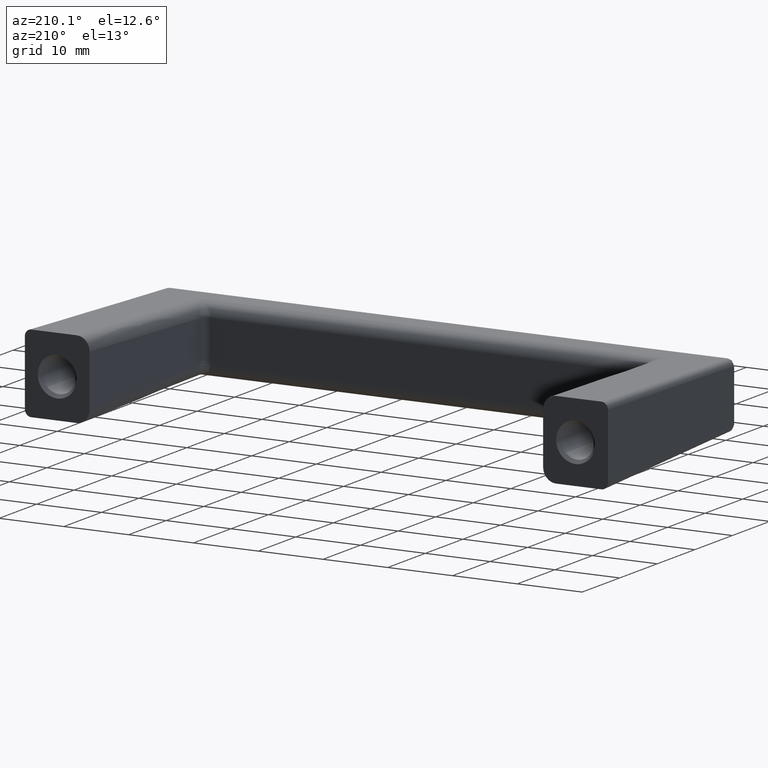
[diagram: clean part render]
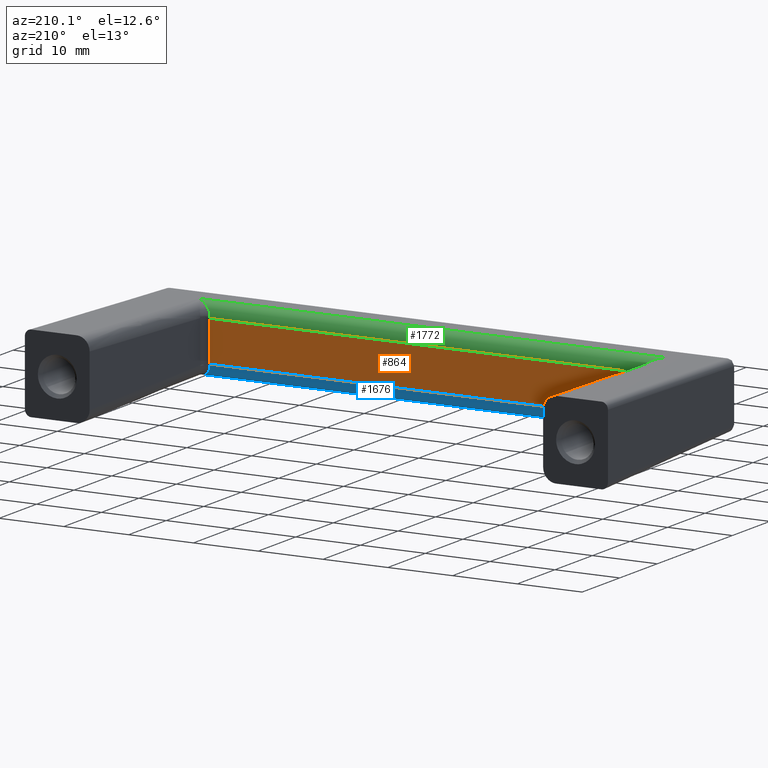
[diagram: same view with three faces highlighted in distinct colors, each labeled with its STEP entity id]
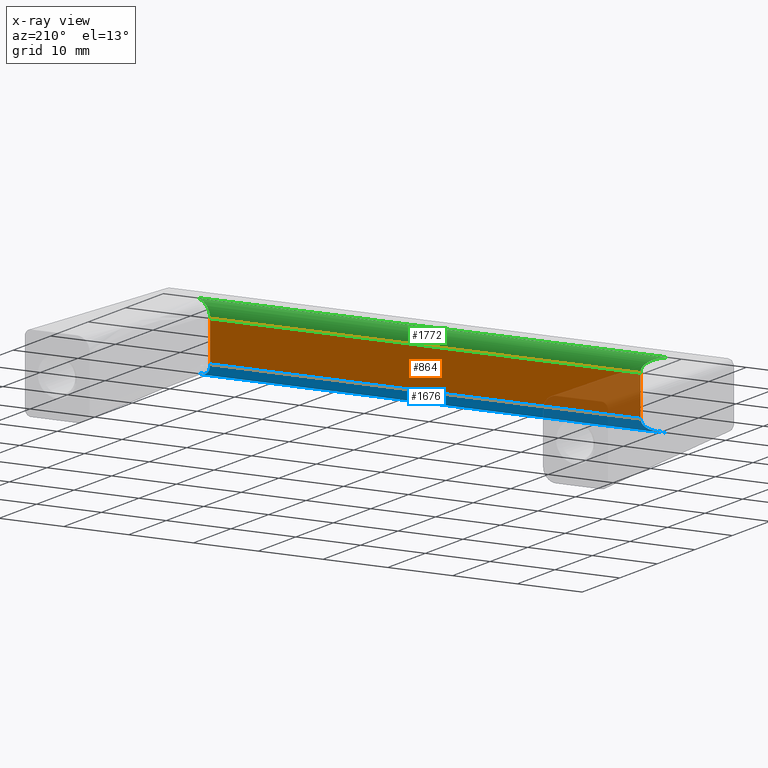
[diagram: x-ray of the same camera — body ghosted, the three highlighted faces saturated]
A machine part, auxiliary view with three faces highlighted in distinct colors.
The next image is the same camera in x-ray (body ghosted, the three faces saturated) — at least one of them is partly hidden behind the body in this view.
Their STEP definitions:

[orange] entity #864 — the highlighted face is a freeform B-spline surface patch.
#829=CARTESIAN_POINT('',(-36.540736908104293,-29.0,-3.451615352102601));
#830=CARTESIAN_POINT('',(36.540338690254693,-29.0,-3.451615352102601));
#831=CARTESIAN_POINT('',(-36.540736908104293,-29.0,3.451615520444308));
#832=CARTESIAN_POINT('',(36.540338690254693,-29.0,3.451615520444308));
#833=B_SPLINE_SURFACE_WITH_KNOTS('',1,1,((#829,#831),(#830,#832)),.UNSPECIFIED.,.F.,.F.,.U.,(2,2),(2,2),(0.0,73.081075598358979),(0.0,6.903230872546909),.UNSPECIFIED.);
#834=CARTESIAN_POINT('',(33.221490187184763,-29.0,-3.138117432736760));
#835=VERTEX_POINT('',#834);
#836=CARTESIAN_POINT('',(-33.221890187184698,-29.0,-3.138117432736760));
#837=VERTEX_POINT('',#836);
#838=CARTESIAN_POINT('',(33.221490187184763,-29.0,-3.138117432736760));
#839=CARTESIAN_POINT('',(-33.221890187184698,-29.0,-3.138117432736760));
#840=QUASI_UNIFORM_CURVE('',1,(#838,#839),.UNSPECIFIED.,.F.,.U.);
#841=EDGE_CURVE('',#835,#837,#840,.T.);
#842=ORIENTED_EDGE('',*,*,#841,.T.);
#843=CARTESIAN_POINT('',(-33.221890187184698,-29.0,3.138117432736730));
#844=VERTEX_POINT('',#843);
#845=CARTESIAN_POINT('',(-33.221890187184698,-29.0,-3.138117432736760));
#846=CARTESIAN_POINT('',(-33.221890187184698,-29.0,3.138117432736730));
#847=QUASI_UNIFORM_CURVE('',1,(#845,#846),.UNSPECIFIED.,.F.,.U.);
#848=EDGE_CURVE('',#837,#844,#847,.T.);
#849=ORIENTED_EDGE('',*,*,#848,.T.);
#850=CARTESIAN_POINT('',(33.221490187184763,-29.0,3.138117432736730));
#851=VERTEX_POINT('',#850);
#852=CARTESIAN_POINT('',(-33.221890187184698,-29.0,3.138117432736730));
#853=CARTESIAN_POINT('',(33.221490187184763,-29.0,3.138117432736730));
#854=QUASI_UNIFORM_CURVE('',1,(#852,#853),.UNSPECIFIED.,.F.,.U.);
#855=EDGE_CURVE('',#844,#851,#854,.T.);
#856=ORIENTED_EDGE('',*,*,#855,.T.);
#857=CARTESIAN_POINT('',(33.221490187184763,-29.0,3.138117432736730));
#858=CARTESIAN_POINT('',(33.221490187184763,-29.0,-3.138117432736760));
#859=QUASI_UNIFORM_CURVE('',1,(#857,#858),.UNSPECIFIED.,.F.,.U.);
#860=EDGE_CURVE('',#851,#835,#859,.T.);
#861=ORIENTED_EDGE('',*,*,#860,.T.);
#862=EDGE_LOOP('',(#842,#849,#856,#861));
#863=FACE_OUTER_BOUND('',#862,.T.);
#864=ADVANCED_FACE('',(#863),#833,.F.);

[blue] entity #1676 — the highlighted face is a freeform B-spline surface patch.
#834=CARTESIAN_POINT('',(33.221490187184763,-29.0,-3.138117432736760));
#835=VERTEX_POINT('',#834);
#836=CARTESIAN_POINT('',(-33.221890187184698,-29.0,-3.138117432736760));
#837=VERTEX_POINT('',#836);
#838=CARTESIAN_POINT('',(33.221490187184763,-29.0,-3.138117432736760));
#839=CARTESIAN_POINT('',(-33.221890187184698,-29.0,-3.138117432736760));
#840=QUASI_UNIFORM_CURVE('',1,(#838,#839),.UNSPECIFIED.,.F.,.U.);
#841=EDGE_CURVE('',#835,#837,#840,.T.);
#1204=CARTESIAN_POINT('',(-33.221859816845303,-29.000728938416351,-3.192110231461500));
#1205=VERTEX_POINT('',#1204);
#1224=CARTESIAN_POINT('',(-33.221859816845303,-29.000728938416351,-3.192110231461500));
#1225=CARTESIAN_POINT('',(-33.221890187184698,-29.0,-3.138117432736760));
#1226=QUASI_UNIFORM_CURVE('',1,(#1224,#1225),.UNSPECIFIED.,.F.,.U.);
#1227=EDGE_CURVE('',#1205,#837,#1226,.T.);
#1282=CARTESIAN_POINT('',(-36.139719625630647,-31.055534134480698,-5.137346274042200));
#1283=VERTEX_POINT('',#1282);
#1284=CARTESIAN_POINT('',(-36.139719625630647,-31.055534134480698,-5.137346274042200));
#1285=CARTESIAN_POINT('',(-35.796899628650763,-30.820634806540799,-5.143526932139266));
#1286=CARTESIAN_POINT('',(-35.300997127065827,-30.479241433997139,-5.094783632806609));
#1287=CARTESIAN_POINT('',(-34.673726006492117,-30.043878003469210,-4.905969787883692));
#1288=CARTESIAN_POINT('',(-34.371733263227817,-29.832959328262799,-4.767627846495563));
#1289=CARTESIAN_POINT('',(-34.209142729400817,-29.718875251744951,-4.674169685087718));
#1290=CARTESIAN_POINT('',(-34.175299187220944,-29.695097297267662,-4.653595589116662));
#1291=CARTESIAN_POINT('',(-34.132988707420843,-29.665373640559231,-4.627983675397957));
#1292=CARTESIAN_POINT('',(-34.091160204656788,-29.635948410463261,-4.601217453550306));
#1293=CARTESIAN_POINT('',(-34.049991479156731,-29.606936512225879,-4.573044490555891));
#1294=CARTESIAN_POINT('',(-33.943158252500673,-29.531631016811058,-4.499238828698016));
#1295=CARTESIAN_POINT('',(-33.784967229102421,-29.419639764371560,-4.372519843708425));
#1296=CARTESIAN_POINT('',(-33.591796650288217,-29.281544684631928,-4.169537976519338));
#1297=CARTESIAN_POINT('',(-33.428793831512607,-29.163554910127811,-3.945651995472452));
#1298=CARTESIAN_POINT('',(-33.301907609159301,-29.069390764710040,-3.687945755070004));
#1299=CARTESIAN_POINT('',(-33.233950699685707,-29.015427440254719,-3.422791273326871));
#1300=CARTESIAN_POINT('',(-33.221771053061097,-29.002592152374749,-3.261377079587426));
#1301=CARTESIAN_POINT('',(-33.221859816845303,-29.000728938416351,-3.192110231461500));
#1302=B_SPLINE_CURVE_WITH_KNOTS('',3,(#1284,#1285,#1286,#1287,#1288,#1289,#1290,#1291,#1292,#1293,#1294,#1295,#1296,#1297,#1298,#1299,#1300,#1301),.UNSPECIFIED.,.F.,.U.,(4,1,1,1,1,1,1,1,1,1,1,1,1,1,1,4),(-0.000236990041875,1.247160780695222,1.801643037930289,2.356068546834119,2.425373196691826,2.460025745296846,2.494678293901871,2.598509452436433,2.633156790375994,2.667804128315553,3.048983444340511,3.326224247609411,3.603384297143788,3.949925588697432,4.227074389423996,4.434970675278761),.UNSPECIFIED.);
#1303=EDGE_CURVE('',#1283,#1205,#1302,.T.);
#1508=CARTESIAN_POINT('',(33.221459816845552,-29.000728938416351,-3.192110231461500));
#1509=VERTEX_POINT('',#1508);
#1522=CARTESIAN_POINT('',(33.221490187184763,-29.0,-3.138117432736760));
#1523=CARTESIAN_POINT('',(33.221459816845552,-29.000728938416351,-3.192110231461500));
#1524=QUASI_UNIFORM_CURVE('',1,(#1522,#1523),.UNSPECIFIED.,.F.,.U.);
#1525=EDGE_CURVE('',#835,#1509,#1524,.T.);
#1582=CARTESIAN_POINT('',(36.139319625630847,-31.055534134480698,-5.137346274042200));
#1583=VERTEX_POINT('',#1582);
#1606=CARTESIAN_POINT('',(33.221459816845552,-29.000728938416351,-3.192110231461500));
#1607=CARTESIAN_POINT('',(33.221339593091258,-29.002891284495330,-3.272922429402758));
#1608=CARTESIAN_POINT('',(33.236683548801700,-29.018214797180612,-3.445801332479172));
#1609=CARTESIAN_POINT('',(33.313838260061011,-29.078717007228342,-3.719306755456955));
#1610=CARTESIAN_POINT('',(33.445513191136627,-29.176060759670051,-3.973268947586643));
#1611=CARTESIAN_POINT('',(33.656729226650633,-29.328655721483599,-4.252792110615678));
#1612=CARTESIAN_POINT('',(33.953196779946822,-29.539430548648280,-4.522345559522503));
#1613=CARTESIAN_POINT('',(34.351544950776052,-29.819341981174489,-4.765880432363559));
#1614=CARTESIAN_POINT('',(34.782844633559023,-30.120051925767971,-4.944749357216212));
#1615=CARTESIAN_POINT('',(35.376976766877803,-30.531860344413641,-5.103623009115472));
#1616=CARTESIAN_POINT('',(35.834552837537892,-30.846711036594499,-5.142922775595606));
#1617=CARTESIAN_POINT('',(36.139319625630847,-31.055534134480698,-5.137346274042200));
#1618=B_SPLINE_CURVE_WITH_KNOTS('',3,(#1606,#1607,#1608,#1609,#1610,#1611,#1612,#1613,#1614,#1615,#1616,#1617),.UNSPECIFIED.,.F.,.U.,(4,1,1,1,1,1,1,1,1,4),(0.000069967885812,0.242574359495862,0.519785263484198,0.866208259319043,1.143394102056869,1.663169510021688,2.217493289923938,2.771832146668181,3.326249866087809,4.434974145449267),.UNSPECIFIED.);
#1619=EDGE_CURVE('',#1509,#1583,#1618,.T.);
#1650=CARTESIAN_POINT('',(37.946295606912393,-31.122097079069711,-5.134387029580493));
#1651=CARTESIAN_POINT('',(-37.991870006444252,-31.122097079069711,-5.134387029580493));
#1652=CARTESIAN_POINT('',(37.946295606912386,-28.842561149536117,-5.273809419757944));
#1653=CARTESIAN_POINT('',(-37.991870006444238,-28.842561149536117,-5.273809419757944));
#1654=CARTESIAN_POINT('',(37.946295606912393,-29.005069780627839,-2.995802922458582));
#1655=CARTESIAN_POINT('',(-37.991870006444245,-29.005069780627839,-2.995802922458582));
#1663=(BOUNDED_SURFACE()B_SPLINE_SURFACE(1,2,((#1650,#1652,#1654),(#1651,#1653,#1655)),.UNSPECIFIED.,.F.,.F.,.U.)B_SPLINE_SURFACE_WITH_KNOTS((2,2),(3,3),(0.0,75.938165613356645),(0.0,3.628135486560046),.UNSPECIFIED.)GEOMETRIC_REPRESENTATION_ITEM()RATIONAL_B_SPLINE_SURFACE(((1.0,0.657724756413543,0.996684679596068),(1.0,0.657724756413543,0.996684679596068)))REPRESENTATION_ITEM('')SURFACE());
#1664=ORIENTED_EDGE('',*,*,#1303,.T.);
#1665=ORIENTED_EDGE('',*,*,#1227,.T.);
#1666=ORIENTED_EDGE('',*,*,#841,.F.);
#1667=ORIENTED_EDGE('',*,*,#1525,.T.);
#1668=ORIENTED_EDGE('',*,*,#1619,.T.);
#1669=CARTESIAN_POINT('',(-36.139719625630647,-31.055534134480698,-5.137346274042200));
#1670=CARTESIAN_POINT('',(36.139319625630847,-31.055534134480698,-5.137346274042200));
#1671=QUASI_UNIFORM_CURVE('',1,(#1669,#1670),.UNSPECIFIED.,.F.,.U.);
#1672=EDGE_CURVE('',#1283,#1583,#1671,.T.);
#1673=ORIENTED_EDGE('',*,*,#1672,.F.);
#1674=EDGE_LOOP('',(#1664,#1665,#1666,#1667,#1668,#1673));
#1675=FACE_OUTER_BOUND('',#1674,.T.);
#1676=ADVANCED_FACE('',(#1675),#1663,.T.);

[green] entity #1772 — the highlighted face is a freeform B-spline surface patch.
#843=CARTESIAN_POINT('',(-33.221890187184698,-29.0,3.138117432736730));
#844=VERTEX_POINT('',#843);
#850=CARTESIAN_POINT('',(33.221490187184763,-29.0,3.138117432736730));
#851=VERTEX_POINT('',#850);
#852=CARTESIAN_POINT('',(-33.221890187184698,-29.0,3.138117432736730));
#853=CARTESIAN_POINT('',(33.221490187184763,-29.0,3.138117432736730));
#854=QUASI_UNIFORM_CURVE('',1,(#852,#853),.UNSPECIFIED.,.F.,.U.);
#855=EDGE_CURVE('',#844,#851,#854,.T.);
#1023=CARTESIAN_POINT('',(-33.221859816845303,-29.000728938416351,3.192110231461505));
#1024=VERTEX_POINT('',#1023);
#1035=CARTESIAN_POINT('',(-33.221890187184698,-29.0,3.138117432736730));
#1036=CARTESIAN_POINT('',(-33.221859816845303,-29.000728938416351,3.192110231461505));
#1037=QUASI_UNIFORM_CURVE('',1,(#1035,#1036),.UNSPECIFIED.,.F.,.U.);
#1038=EDGE_CURVE('',#844,#1024,#1037,.T.);
#1147=CARTESIAN_POINT('',(-36.139719625630647,-31.055534134480698,5.137346274042200));
#1148=VERTEX_POINT('',#1147);
#1171=CARTESIAN_POINT('',(-33.221859816845303,-29.000728938416351,3.192110231461505));
#1172=CARTESIAN_POINT('',(-33.221706954692678,-29.003189658564089,3.284469579011093));
#1173=CARTESIAN_POINT('',(-33.241702218254673,-29.022340252359719,3.480305259384541));
#1174=CARTESIAN_POINT('',(-33.328424053146669,-29.089289460632219,3.749736920269775));
#1175=CARTESIAN_POINT('',(-33.458674136828662,-29.185279921885471,3.990153173887723));
#1176=CARTESIAN_POINT('',(-33.657140197768307,-29.328663661074941,4.252807112425261));
#1177=CARTESIAN_POINT('',(-33.953594120896668,-29.539428556745381,4.522339490017553));
#1178=CARTESIAN_POINT('',(-34.351944288455421,-29.819341646967260,4.765884750370260));
#1179=CARTESIAN_POINT('',(-34.783242986417889,-30.120050892707251,4.944752826923846));
#1180=CARTESIAN_POINT('',(-35.377386514266192,-30.531866307944309,5.103597080656732));
#1181=CARTESIAN_POINT('',(-35.834943847743219,-30.846705629957359,5.142950050917438));
#1182=CARTESIAN_POINT('',(-36.139719625630647,-31.055534134480698,5.137346274042200));
#1183=B_SPLINE_CURVE_WITH_KNOTS('',3,(#1171,#1172,#1173,#1174,#1175,#1176,#1177,#1178,#1179,#1180,#1181,#1182),.UNSPECIFIED.,.F.,.U.,(4,1,1,1,1,1,1,1,1,4),(0.000069967884597,0.277209370902639,0.589021045884725,0.866208259317590,1.143394102055205,1.663169510019755,2.217493289922312,2.771832146666603,3.326249866086053,4.434974145447042),.UNSPECIFIED.);
#1184=EDGE_CURVE('',#1024,#1148,#1183,.T.);
#1349=CARTESIAN_POINT('',(33.221459816845403,-29.000728938416351,3.192110231461365));
#1350=VERTEX_POINT('',#1349);
#1351=CARTESIAN_POINT('',(33.221459816845403,-29.000728938416351,3.192110231461365));
#1352=CARTESIAN_POINT('',(33.221490187184763,-29.0,3.138117432736730));
#1353=QUASI_UNIFORM_CURVE('',1,(#1351,#1352),.UNSPECIFIED.,.F.,.U.);
#1354=EDGE_CURVE('',#1350,#851,#1353,.T.);
#1421=CARTESIAN_POINT('',(36.139319625630698,-31.055534134480698,5.137346274042200));
#1422=VERTEX_POINT('',#1421);
#1423=CARTESIAN_POINT('',(36.139319625630698,-31.055534134480698,5.137346274042200));
#1424=CARTESIAN_POINT('',(35.834539511489680,-30.846701901846139,5.142922879897185));
#1425=CARTESIAN_POINT('',(35.376963619111137,-30.531851324196829,5.103622835648615));
#1426=CARTESIAN_POINT('',(34.745695233480042,-30.094302526712760,4.934808791061104));
#1427=CARTESIAN_POINT('',(34.405612672557609,-29.857010581667140,4.787281266236051));
#1428=CARTESIAN_POINT('',(34.208734616178397,-29.718869688695388,4.674169691259564));
#1429=CARTESIAN_POINT('',(34.174897347152118,-29.695096224455099,4.653602390204176));
#1430=CARTESIAN_POINT('',(34.132582292928170,-29.665369586450559,4.627996070075573));
#1431=CARTESIAN_POINT('',(34.090773362730758,-29.635956724680561,4.601191956596368));
#1432=CARTESIAN_POINT('',(34.049589362871110,-29.606935194871362,4.573049306583468));
#1433=CARTESIAN_POINT('',(33.942758029048072,-29.531630887414281,4.499239686348244));
#1434=CARTESIAN_POINT('',(33.784567115586107,-29.419639692825179,4.372520070228347));
#1435=CARTESIAN_POINT('',(33.591400557096350,-29.281547572319610,4.169545493194121));
#1436=CARTESIAN_POINT('',(33.440923378580528,-29.172624145586131,3.962850963827909));
#1437=CARTESIAN_POINT('',(33.330217383856358,-29.090747348098908,3.748078213630709));
#1438=CARTESIAN_POINT('',(33.245044454924447,-29.025219922468921,3.491595781664893));
#1439=CARTESIAN_POINT('',(33.221207691340638,-29.003764672015169,3.307620392080386));
#1440=CARTESIAN_POINT('',(33.221459816845403,-29.000728938416351,3.192110231461365));
#1441=B_SPLINE_CURVE_WITH_KNOTS('',3,(#1423,#1424,#1425,#1426,#1427,#1428,#1429,#1430,#1431,#1432,#1433,#1434,#1435,#1436,#1437,#1438,#1439,#1440),.UNSPECIFIED.,.F.,.U.,(4,1,1,1,1,1,1,1,1,1,1,1,1,1,1,4),(-0.000236990014234,1.108616403081956,1.662992847675207,2.356068546872677,2.425373196730666,2.460025745335828,2.494678293940987,2.598509452475948,2.633156790415675,2.667804128355401,3.048983444382095,3.326224247652291,3.603384297187924,3.880566695088121,4.088509769188265,4.434970675278906),.UNSPECIFIED.);
#1442=EDGE_CURVE('',#1422,#1350,#1441,.T.);
#1746=CARTESIAN_POINT('',(-37.946695606912193,-31.122097079069711,5.134387029580464));
#1747=CARTESIAN_POINT('',(37.991470006444267,-31.122097079069711,5.134387029580464));
#1748=CARTESIAN_POINT('',(-37.946695606912201,-28.842561149536117,5.273809419757909));
#1749=CARTESIAN_POINT('',(37.991470006444260,-28.842561149536117,5.273809419757909));
#1750=CARTESIAN_POINT('',(-37.946695606912186,-29.005069780627839,2.995802922458553));
#1751=CARTESIAN_POINT('',(37.991470006444274,-29.005069780627839,2.995802922458553));
#1759=(BOUNDED_SURFACE()B_SPLINE_SURFACE(1,2,((#1746,#1748,#1750),(#1747,#1749,#1751)),.UNSPECIFIED.,.F.,.F.,.U.)B_SPLINE_SURFACE_WITH_KNOTS((2,2),(3,3),(0.0,75.938165613356475),(0.0,3.628135486560046),.UNSPECIFIED.)GEOMETRIC_REPRESENTATION_ITEM()RATIONAL_B_SPLINE_SURFACE(((1.0,0.657724756413543,0.996684679596068),(1.0,0.657724756413543,0.996684679596068)))REPRESENTATION_ITEM('')SURFACE());
#1760=ORIENTED_EDGE('',*,*,#855,.F.);
#1761=ORIENTED_EDGE('',*,*,#1038,.T.);
#1762=ORIENTED_EDGE('',*,*,#1184,.T.);
#1763=CARTESIAN_POINT('',(36.139319625630698,-31.055534134480698,5.137346274042200));
#1764=CARTESIAN_POINT('',(-36.139719625630647,-31.055534134480698,5.137346274042200));
#1765=QUASI_UNIFORM_CURVE('',1,(#1763,#1764),.UNSPECIFIED.,.F.,.U.);
#1766=EDGE_CURVE('',#1422,#1148,#1765,.T.);
#1767=ORIENTED_EDGE('',*,*,#1766,.F.);
#1768=ORIENTED_EDGE('',*,*,#1442,.T.);
#1769=ORIENTED_EDGE('',*,*,#1354,.T.);
#1770=EDGE_LOOP('',(#1760,#1761,#1762,#1767,#1768,#1769));
#1771=FACE_OUTER_BOUND('',#1770,.T.);
#1772=ADVANCED_FACE('',(#1771),#1759,.T.);